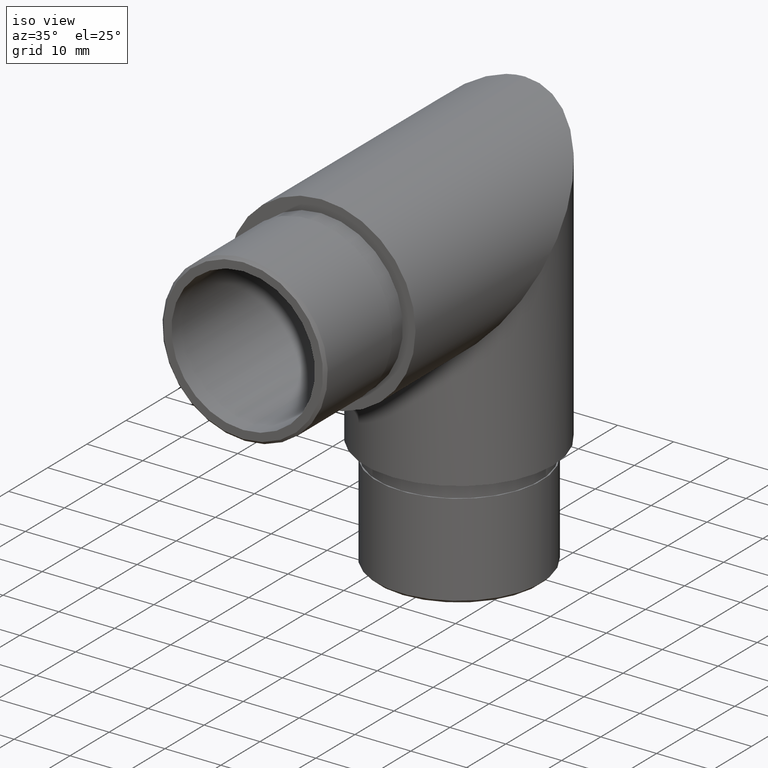
[diagram: clean part render]
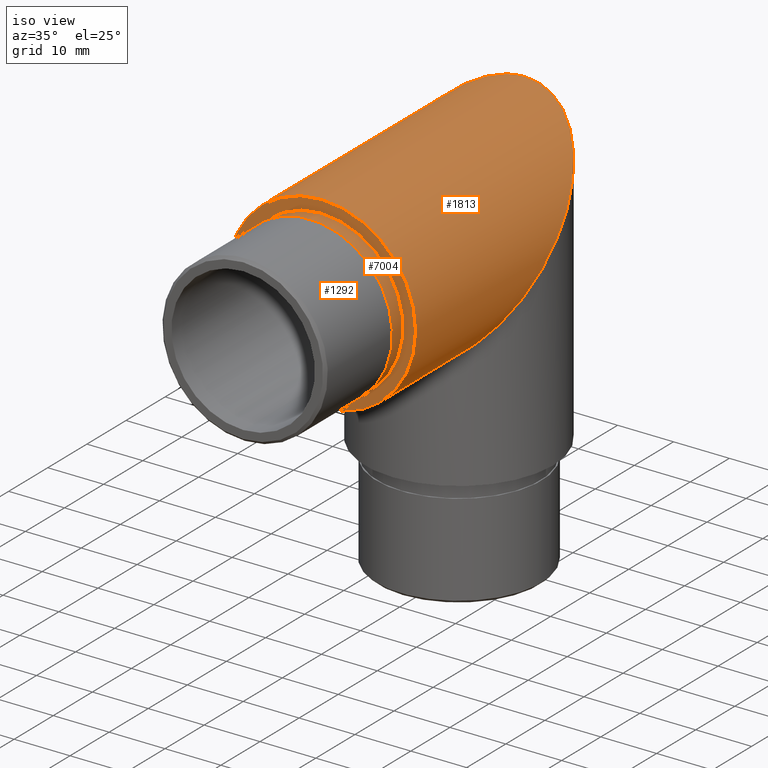
[diagram: same view with one multi-face feature highlighted, each face labeled with its STEP entity id]
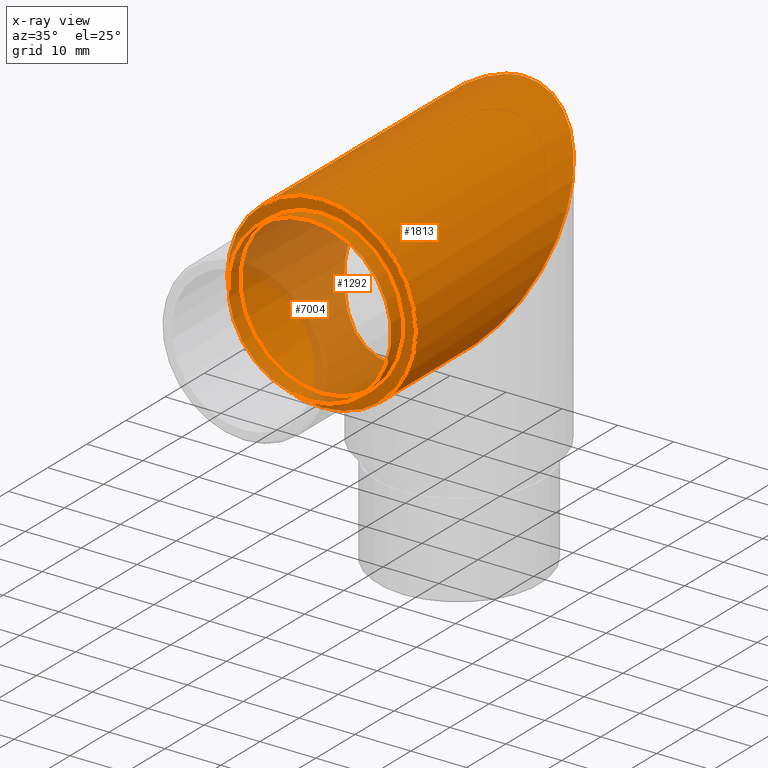
[diagram: x-ray of the same camera — body ghosted, the whole feature saturated]
A machine part, iso view. The highlighted faces form ONE feature: a stepped (counterbored) hole: 2 coaxial cylindrical walls of radii 14.6 -> 16.85 mm joined by 1 annular planar shoulder face(s). The faces share edges in the B-rep.
The next image is the same camera in x-ray: the body ghosted and the whole hole feature saturated, so the bore chain is visible through the body.
Their STEP definitions:
[1] entity #1813 (Cylinder):
#92 = DIRECTION ( 'NONE',  ( 0.0000000000000000000, 1.000000000000000000, 0.0000000000000000000 ) ) ;
#336 = FACE_OUTER_BOUND ( 'NONE', #8915, .T. ) ;
#942 = DIRECTION ( 'NONE',  ( -0.0000000000000000000, -1.000000000000000000, -0.0000000000000000000 ) ) ;
#1014 = CARTESIAN_POINT ( 'NONE',  ( 0.0000000000000000000, 18.29999999999993700, -16.85000000000000100 ) ) ;
#1682 = EDGE_CURVE ( 'NONE', #10142, #10142, #9249, .T. ) ;
#1797 = CARTESIAN_POINT ( 'NONE',  ( 0.0000000000000000000, 18.29999999999993700, -16.85000000000000100 ) ) ;
#1813 = ADVANCED_FACE ( 'NONE', ( #4456, #336 ), #8703, .T. ) ;
#1999 = DIRECTION ( 'NONE',  ( 0.0000000000000000000, 0.0000000000000000000, -1.000000000000000000 ) ) ;
#2552 = EDGE_LOOP ( 'NONE', ( #4884 ) ) ;
#3449 = CARTESIAN_POINT ( 'NONE',  ( -33.70000000000000300, 52.00000000000005700, 16.84999999999999800 ) ) ;
#3564 = ORIENTED_EDGE ( 'NONE', *, *, #1682, .F. ) ;
#4208 = CARTESIAN_POINT ( 'NONE',  ( -2.063529856563290600E-015, 52.00000000000005700, 16.85000000000000100 ) ) ;
#4456 = FACE_OUTER_BOUND ( 'NONE', #2552, .T. ) ;
#4578 = VERTEX_POINT ( 'NONE', #5632 ) ;
#4884 = ORIENTED_EDGE ( 'NONE', *, *, #6385, .T. ) ;
#5061 = CARTESIAN_POINT ( 'NONE',  ( -33.70000000000000300, 18.29999999999993300, -16.85000000000000100 ) ) ;
#5632 = CARTESIAN_POINT ( 'NONE',  ( 0.0000000000000000000, 0.0000000000000000000, 16.85000000000000100 ) ) ;
#5818 = CARTESIAN_POINT ( 'NONE',  ( 0.0000000000000000000, 82.80899705197330700, 0.0000000000000000000 ) ) ;
#5836 = DIRECTION ( 'NONE',  ( 0.0000000000000000000, 0.0000000000000000000, 1.000000000000000000 ) ) ;
#5845 = CARTESIAN_POINT ( 'NONE',  ( 33.70000000000000300, 18.29999999999993300, -16.85000000000000100 ) ) ;
#6385 = EDGE_CURVE ( 'NONE', #4578, #4578, #10576, .T. ) ;
#6536 = CARTESIAN_POINT ( 'NONE',  ( 0.0000000000000000000, 18.29999999999993700, -16.85000000000000100 ) ) ;
#6803 = CARTESIAN_POINT ( 'NONE',  ( 0.0000000000000000000, 0.0000000000000000000, 0.0000000000000000000 ) ) ;
#7854 = AXIS2_PLACEMENT_3D ( 'NONE', #5818, #942, #1999 ) ;
#8703 = CYLINDRICAL_SURFACE ( 'NONE', #7854, 16.85000000000000100 ) ;
#8915 = EDGE_LOOP ( 'NONE', ( #3564 ) ) ;
#9249 =( BOUNDED_CURVE ( )  B_SPLINE_CURVE ( 3, ( #1797, #5061, #3449, #4208, #10031, #5845, #1014 ),
 .UNSPECIFIED., .T., .T. ) 
 B_SPLINE_CURVE_WITH_KNOTS ( ( 4, 3, 4 ),
 ( 0.0000000000000000000, 3.141592653589793100, 6.283185307179586200 ),
 .UNSPECIFIED. ) 
 CURVE ( )  GEOMETRIC_REPRESENTATION_ITEM ( )  RATIONAL_B_SPLINE_CURVE ( ( 1.000000000000000000, 0.3333333333333333700, 0.3333333333333333700, 1.000000000000000000, 0.3333333333333333700, 0.3333333333333333700, 1.000000000000000000 ) ) 
 REPRESENTATION_ITEM ( '' )  );
#9680 = AXIS2_PLACEMENT_3D ( 'NONE', #6803, #92, #5836 ) ;
#10031 = CARTESIAN_POINT ( 'NONE',  ( 33.70000000000000300, 52.00000000000006400, 16.85000000000000500 ) ) ;
#10142 = VERTEX_POINT ( 'NONE', #6536 ) ;
#10576 = CIRCLE ( 'NONE', #9680, 16.85000000000000100 ) ;
[2] entity #7004 (Cylinder):
#21 = CIRCLE ( 'NONE', #6273, 14.60000000000000100 ) ;
#704 = CARTESIAN_POINT ( 'NONE',  ( 0.0000000000000000000, -3.000000000000000000, -14.60000000000000100 ) ) ;
#717 = VERTEX_POINT ( 'NONE', #704 ) ;
#1247 = EDGE_LOOP ( 'NONE', ( #6991 ) ) ;
#1903 = FACE_OUTER_BOUND ( 'NONE', #1247, .T. ) ;
#1953 = CARTESIAN_POINT ( 'NONE',  ( 0.0000000000000000000, 0.0000000000000000000, 0.0000000000000000000 ) ) ;
#2624 = AXIS2_PLACEMENT_3D ( 'NONE', #4898, #5714, #5676 ) ;
#2862 = ORIENTED_EDGE ( 'NONE', *, *, #7965, .F. ) ;
#4898 = CARTESIAN_POINT ( 'NONE',  ( 0.0000000000000000000, -3.000000000000000000, 0.0000000000000000000 ) ) ;
#5315 = DIRECTION ( 'NONE',  ( -0.0000000000000000000, 1.000000000000000000, -0.0000000000000000000 ) ) ;
#5352 = VERTEX_POINT ( 'NONE', #8193 ) ;
#5525 = FACE_OUTER_BOUND ( 'NONE', #6902, .T. ) ;
#5565 = EDGE_CURVE ( 'NONE', #5352, #5352, #21, .T. ) ;
#5676 = DIRECTION ( 'NONE',  ( 0.0000000000000000000, 0.0000000000000000000, -1.000000000000000000 ) ) ;
#5714 = DIRECTION ( 'NONE',  ( 0.0000000000000000000, -1.000000000000000000, 0.0000000000000000000 ) ) ;
#6134 = CARTESIAN_POINT ( 'NONE',  ( 0.0000000000000000000, -3.000000000000000000, 0.0000000000000000000 ) ) ;
#6273 = AXIS2_PLACEMENT_3D ( 'NONE', #1953, #8602, #7740 ) ;
#6423 = CYLINDRICAL_SURFACE ( 'NONE', #8431, 14.60000000000000100 ) ;
#6902 = EDGE_LOOP ( 'NONE', ( #2862 ) ) ;
#6991 = ORIENTED_EDGE ( 'NONE', *, *, #5565, .T. ) ;
#7004 = ADVANCED_FACE ( 'NONE', ( #5525, #1903 ), #6423, .T. ) ;
#7740 = DIRECTION ( 'NONE',  ( 0.0000000000000000000, 0.0000000000000000000, 1.000000000000000000 ) ) ;
#7761 = DIRECTION ( 'NONE',  ( 0.0000000000000000000, 0.0000000000000000000, 1.000000000000000000 ) ) ;
#7965 = EDGE_CURVE ( 'NONE', #717, #717, #9307, .T. ) ;
#8193 = CARTESIAN_POINT ( 'NONE',  ( 0.0000000000000000000, 0.0000000000000000000, 14.60000000000000100 ) ) ;
#8431 = AXIS2_PLACEMENT_3D ( 'NONE', #6134, #5315, #7761 ) ;
#8602 = DIRECTION ( 'NONE',  ( -0.0000000000000000000, -1.000000000000000000, -0.0000000000000000000 ) ) ;
#9307 = CIRCLE ( 'NONE', #2624, 14.60000000000000100 ) ;
[3] entity #1292 (Plane):
#21 = CIRCLE ( 'NONE', #6273, 14.60000000000000100 ) ;
#92 = DIRECTION ( 'NONE',  ( 0.0000000000000000000, 1.000000000000000000, 0.0000000000000000000 ) ) ;
#323 = DIRECTION ( 'NONE',  ( 0.0000000000000000000, 1.000000000000000000, 0.0000000000000000000 ) ) ;
#1127 = DIRECTION ( 'NONE',  ( 0.0000000000000000000, -0.0000000000000000000, 1.000000000000000000 ) ) ;
#1292 = ADVANCED_FACE ( 'NONE', ( #9358, #2777 ), #9296, .F. ) ;
#1953 = CARTESIAN_POINT ( 'NONE',  ( 0.0000000000000000000, 0.0000000000000000000, 0.0000000000000000000 ) ) ;
#2127 = EDGE_LOOP ( 'NONE', ( #7582 ) ) ;
#2693 = EDGE_LOOP ( 'NONE', ( #4347 ) ) ;
#2777 = FACE_BOUND ( 'NONE', #2127, .T. ) ;
#4347 = ORIENTED_EDGE ( 'NONE', *, *, #6385, .F. ) ;
#4578 = VERTEX_POINT ( 'NONE', #5632 ) ;
#5250 = CARTESIAN_POINT ( 'NONE',  ( 0.0000000000000000000, 0.0000000000000000000, 0.0000000000000000000 ) ) ;
#5352 = VERTEX_POINT ( 'NONE', #8193 ) ;
#5565 = EDGE_CURVE ( 'NONE', #5352, #5352, #21, .T. ) ;
#5632 = CARTESIAN_POINT ( 'NONE',  ( 0.0000000000000000000, 0.0000000000000000000, 16.85000000000000100 ) ) ;
#5836 = DIRECTION ( 'NONE',  ( 0.0000000000000000000, 0.0000000000000000000, 1.000000000000000000 ) ) ;
#6273 = AXIS2_PLACEMENT_3D ( 'NONE', #1953, #8602, #7740 ) ;
#6385 = EDGE_CURVE ( 'NONE', #4578, #4578, #10576, .T. ) ;
#6803 = CARTESIAN_POINT ( 'NONE',  ( 0.0000000000000000000, 0.0000000000000000000, 0.0000000000000000000 ) ) ;
#7582 = ORIENTED_EDGE ( 'NONE', *, *, #5565, .F. ) ;
#7740 = DIRECTION ( 'NONE',  ( 0.0000000000000000000, 0.0000000000000000000, 1.000000000000000000 ) ) ;
#8193 = CARTESIAN_POINT ( 'NONE',  ( 0.0000000000000000000, 0.0000000000000000000, 14.60000000000000100 ) ) ;
#8602 = DIRECTION ( 'NONE',  ( -0.0000000000000000000, -1.000000000000000000, -0.0000000000000000000 ) ) ;
#9296 = PLANE ( 'NONE',  #9797 ) ;
#9358 = FACE_OUTER_BOUND ( 'NONE', #2693, .T. ) ;
#9680 = AXIS2_PLACEMENT_3D ( 'NONE', #6803, #92, #5836 ) ;
#9797 = AXIS2_PLACEMENT_3D ( 'NONE', #5250, #323, #1127 ) ;
#10576 = CIRCLE ( 'NONE', #9680, 16.85000000000000100 ) ;